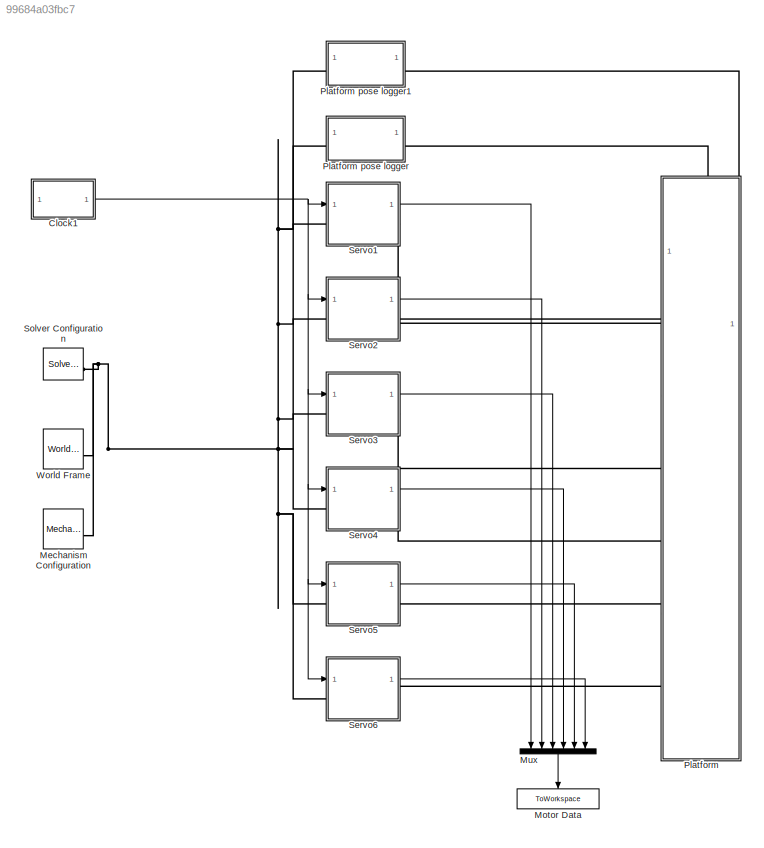
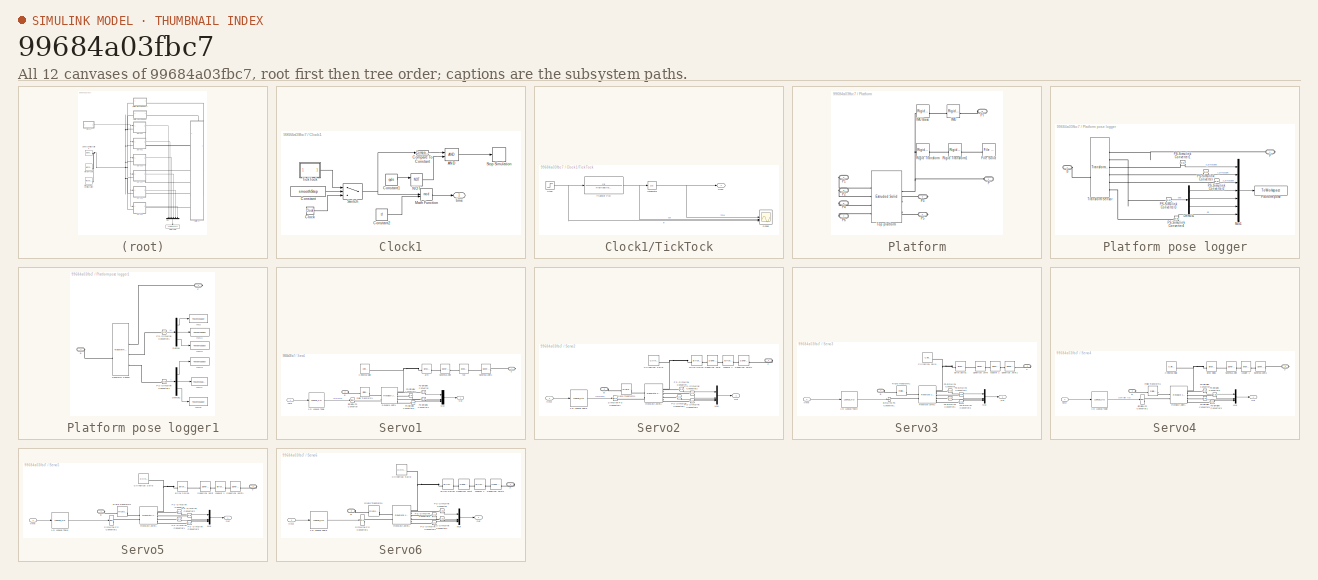
[diagram: thumbnail index - all 12 canvases of the model, root first then tree order]
MODEL slx_99684a03fbc7
KIND model
CONFIG AbsTol = 1e-3
CONFIG EnableMultiTasking = on
CONFIG FixedStep = 1e-4
CONFIG MaxStep = auto
CONFIG MinStep = auto
CONFIG RelTol = 1e-3
CONFIG SampleTimeConstraint = Unconstrained
CONFIG SolverName = FixedStepAuto
CONFIG StartTime = 0.0
CONFIG StopTime = Inf
BLOCK [SubSystem] Clock1
BLOCK [Logic] Clock1/AND
  AllPortsSameDT = off
  IconShape = distinctive
  OutDataTypeStr = boolean
BLOCK [Clock] Clock1/Clock
BLOCK [Reference] Clock1/Compare To Constant  REF=simulink/Logic and Bit
Operations/Compare
To Constant
  SourceBlock = simulink/Logic and Bit\nOperations/Compare\nTo Constant
  SourceType = Compare To Constant
BLOCK [Constant] Clock1/Constant
  Value = smoothStep
BLOCK [Constant] Clock1/Constant1
  Value = cycle
BLOCK [Constant] Clock1/Constant2
  Value = tf
BLOCK [Math] Clock1/Math Function
  Operator = mod
BLOCK [Logic] Clock1/NOT
  AllPortsSameDT = off
  IconShape = distinctive
  Operator = NOT
  OutDataTypeStr = boolean
BLOCK [Stop] Clock1/Stop Simulation
BLOCK [Switch] Clock1/Switch
  Criteria = u2 > Threshold
  InputSameDT = off
  SaturateOnIntegerOverflow = off
BLOCK [SubSystem] Clock1/TickTock
BLOCK [Integrator] Clock1/TickTock/Integrator
BLOCK [Scope] Clock1/TickTock/Scope
  ActiveDisplayYMaximum = 1.00319
  ActiveDisplayYMinimum = 0.99077
  Floating = off
  GraphicalSettings = {"GraphicalSettings":{"LegacySettings":true,"Style":{"AxesScalingProperties":{"ScaleAxesLimitsAtStop":false},"Style":{"AxesColor":"[0 0 0]","ChannelNames":[""],"ColorOrder":"[1 0.909803921568627 0.392156862745098;0.149019607843137 0.549019607843137 0.866666666666667;0.96078431372549 0.466666666666667 0.16078431372549;0.286274509803922 0.858823529411765 0.250980392156863;0.752941176470588 0.3607843...<+519ch>
  MultipleDisplayCache = [{"MaxYLimMag":1.00319,"MaxYLimReal":1.00319,"MinYLimMag":0.99077,"MinYLimReal":0.99077,"PlotAsMagnitudePhase":false,"ShowGrid":true,"ShowLegend":true,"Title":"%<SignalLabel>","YLabel":""}]
  NumInputPorts = 3
  ShowLegend = on
  WasSavedAsWebScope = on
  WindowPosition = [1 49 1920 960]
BLOCK [Step] Clock1/TickTock/Step
  SampleTime = 0
  Time = 0
BLOCK [TransferFcn] Clock1/TickTock/Transfer Fcn
  Denominator = fliplr(poly(ones(1, order) * -1) .* tauK.^(0:order))
BLOCK [Outport] Clock1/TickTock/clock
BLOCK [Outport] Clock1/time
BLOCK [Reference] Mechanism Configuration  REF=sm_lib/Utilities/Mechanism
Configuration
  SourceBlock = sm_lib/Utilities/Mechanism\nConfiguration
  SourceType = Mechanism\nConfiguration
BLOCK [ToWorkspace] Motor Data
  FixptAsFi = on
  MaxDataPoints = inf
  SampleTime = -1
  SaveFormat = Timeseries
  VariableName = simout
BLOCK [Mux] Mux
  DisplayOption = bar
  Inputs = 6
  NameLocation = left
BLOCK [SubSystem] Platform
  NameLocation = top
  PortSchema = {"entries":[{"content":{"sides":[{"content":{},"type":"ConnectorPlacement.EquallySpacedRectSide","uuid":"9676e411-c393-4a61-b60a-23ce37fcadae"},{"content":{"connectorIds":["RConn1","RConn2","RConn3","RConn4","RConn5","RConn6"],"side":"RIGHT"},"type":"ConnectorPlacement.EquallySpacedRectSide","uuid":"2c923754-983e-4ac2-bedb-445f0578a5c9"},{"content":{"connectorIds":["LConn1","LConn2"],"side":"TOP"}...<+282ch>
BLOCK [SubSystem] Platform pose logger
BLOCK [PMIOPort] Platform pose logger/B
  Port = 2
  Side = Left
BLOCK [Demux] Platform pose logger/Demux1
  Outputs = 3
BLOCK [PMIOPort] Platform pose logger/F
  NameLocation = top
  Side = Right
BLOCK [Mux] Platform pose logger/Mux1
  DisplayOption = bar
  Inputs = 7
BLOCK [Reference] Platform pose logger/PS-Simulink Converter  REF=nesl_utility/PS-Simulink
Converter
  SourceBlock = nesl_utility/PS-Simulink\nConverter
  SourceType = PS-Simulink\nConverter
BLOCK [Reference] Platform pose logger/PS-Simulink Converter1  REF=nesl_utility/PS-Simulink
Converter
  SourceBlock = nesl_utility/PS-Simulink\nConverter
  SourceType = PS-Simulink\nConverter
BLOCK [Reference] Platform pose logger/PS-Simulink Converter2  REF=nesl_utility/PS-Simulink
Converter
  SourceBlock = nesl_utility/PS-Simulink\nConverter
  SourceType = PS-Simulink\nConverter
BLOCK [Reference] Platform pose logger/PS-Simulink Converter3  REF=nesl_utility/PS-Simulink
Converter
  SourceBlock = nesl_utility/PS-Simulink\nConverter
  SourceType = PS-Simulink\nConverter
BLOCK [Reference] Platform pose logger/PS-Simulink Converter4  REF=nesl_utility/PS-Simulink
Converter
  SourceBlock = nesl_utility/PS-Simulink\nConverter
  SourceType = PS-Simulink\nConverter
BLOCK [ToWorkspace] Platform pose logger/Platform pose
  FixptAsFi = on
  MaxDataPoints = inf
  SampleTime = -1
  SaveFormat = Timeseries
  VariableName = pose_simscape
BLOCK [Reference] Platform pose logger/Transform Sensor  REF=sm_lib/Frames and
Transforms/Transform
Sensor
  SourceBlock = sm_lib/Frames and\nTransforms/Transform\nSensor
  SourceType = Transform\nSensor
BLOCK [SubSystem] Platform pose logger1
BLOCK [PMIOPort] Platform pose logger1/B
  Port = 2
  Side = Left
BLOCK [Demux] Platform pose logger1/Demux
  Outputs = 3
BLOCK [Demux] Platform pose logger1/Demux1
  Outputs = 3
BLOCK [PMIOPort] Platform pose logger1/F
  NameLocation = top
  Side = Right
BLOCK [ToWorkspace] Platform pose logger1/IMU
  FixptAsFi = on
  MaxDataPoints = inf
  SampleTime = -1
  SaveFormat = Timeseries
  VariableName = imu_sim_wx
BLOCK [ToWorkspace] Platform pose logger1/IMU1
  FixptAsFi = on
  MaxDataPoints = inf
  SampleTime = -1
  SaveFormat = Timeseries
  VariableName = imu_sim_wy
BLOCK [ToWorkspace] Platform pose logger1/IMU2
  FixptAsFi = on
  MaxDataPoints = inf
  SampleTime = -1
  SaveFormat = Timeseries
  VariableName = imu_sim_wz
BLOCK [ToWorkspace] Platform pose logger1/IMU3
  FixptAsFi = on
  MaxDataPoints = inf
  SampleTime = -1
  SaveFormat = Timeseries
  VariableName = imu_sim_ax
BLOCK [ToWorkspace] Platform pose logger1/IMU4
  FixptAsFi = on
  MaxDataPoints = inf
  SampleTime = -1
  SaveFormat = Timeseries
  VariableName = imu_sim_ay
BLOCK [ToWorkspace] Platform pose logger1/IMU5
  FixptAsFi = on
  MaxDataPoints = inf
  SampleTime = -1
  SaveFormat = Timeseries
  VariableName = imu_sim_az
BLOCK [Reference] Platform pose logger1/PS-Simulink Converter1  REF=nesl_utility/PS-Simulink
Converter
  SourceBlock = nesl_utility/PS-Simulink\nConverter
  SourceType = PS-Simulink\nConverter
BLOCK [Reference] Platform pose logger1/PS-Simulink Converter4  REF=nesl_utility/PS-Simulink
Converter
  SourceBlock = nesl_utility/PS-Simulink\nConverter
  SourceType = PS-Simulink\nConverter
BLOCK [Reference] Platform pose logger1/Transform Sensor  REF=sm_lib/Frames and
Transforms/Transform
Sensor
  SourceBlock = sm_lib/Frames and\nTransforms/Transform\nSensor
  SourceType = Transform\nSensor
BLOCK [Reference] Platform/File Solid  REF=sm_lib/Body Elements/File Solid
  SourceBlock = sm_lib/Body Elements/File Solid
  SourceType = File Solid
BLOCK [Reference] Platform/IMU  REF=sm_lib/Frames and
Transforms/Rigid
Transform
  SourceBlock = sm_lib/Frames and\nTransforms/Rigid\nTransform
  SourceType = Rigid\nTransform
BLOCK [Reference] Platform/IMU Base  REF=sm_lib/Frames and
Transforms/Rigid
Transform
  SourceBlock = sm_lib/Frames and\nTransforms/Rigid\nTransform
  SourceType = Rigid\nTransform
BLOCK [PMIOPort] Platform/P
  NameLocation = top
  Side = Left
BLOCK [PMIOPort] Platform/P1
  Port = 2
  Side = Right
BLOCK [PMIOPort] Platform/P2
  Port = 3
  Side = Right
BLOCK [PMIOPort] Platform/P3
  NameLocation = top
  Port = 4
  Side = Right
BLOCK [PMIOPort] Platform/P4
  Port = 5
  Side = Right
BLOCK [PMIOPort] Platform/P5
  NameLocation = top
  Port = 6
  Side = Right
BLOCK [PMIOPort] Platform/P6
  Port = 7
  Side = Right
BLOCK [PMIOPort] Platform/P7
  NameLocation = top
  Port = 8
  Side = Left
BLOCK [Reference] Platform/Rigid Transform  REF=sm_lib/Frames and
Transforms/Rigid
Transform
  SourceBlock = sm_lib/Frames and\nTransforms/Rigid\nTransform
  SourceType = Rigid\nTransform
BLOCK [Reference] Platform/Rigid Transform1  REF=sm_lib/Frames and
Transforms/Rigid
Transform
  SourceBlock = sm_lib/Frames and\nTransforms/Rigid\nTransform
  SourceType = Rigid\nTransform
BLOCK [Reference] Platform/Top platform  REF=sm_lib/Body Elements/Extruded Solid
  SourceBlock = sm_lib/Body Elements/Extruded Solid
  SourceType = Extruded Solid
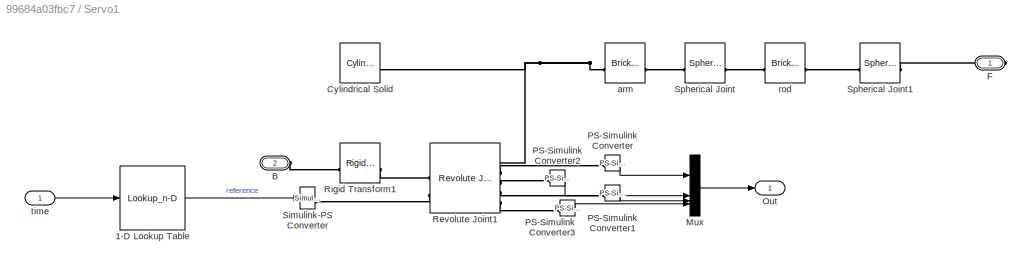
BLOCK [SubSystem] Servo1
BLOCK [Lookup_n-D] Servo1/1-D Lookup Table
  BreakpointsForDimension1 = time
  InputPortMap = u0
  InternalRulePriority = Speed
  InterpMethod = Cubic spline
  NumberOfTableDimensions = 1
  RndMeth = Simplest
  Table = jointAngles(:,2)
BLOCK [PMIOPort] Servo1/B
  Port = 2
  Side = Left
BLOCK [Reference] Servo1/Cylindrical Solid  REF=sm_lib/Body Elements/Cylindrical Solid
  SourceBlock = sm_lib/Body Elements/Cylindrical Solid
  SourceType = Cylindrical Solid
BLOCK [PMIOPort] Servo1/F
  Side = Right
BLOCK [Mux] Servo1/Mux
  DisplayOption = bar
BLOCK [Outport] Servo1/Out
BLOCK [Reference] Servo1/PS-Simulink Converter  REF=nesl_utility/PS-Simulink
Converter
  SourceBlock = nesl_utility/PS-Simulink\nConverter
  SourceType = PS-Simulink\nConverter
BLOCK [Reference] Servo1/PS-Simulink Converter1  REF=nesl_utility/PS-Simulink
Converter
  SourceBlock = nesl_utility/PS-Simulink\nConverter
  SourceType = PS-Simulink\nConverter
BLOCK [Reference] Servo1/PS-Simulink Converter2  REF=nesl_utility/PS-Simulink
Converter
  SourceBlock = nesl_utility/PS-Simulink\nConverter
  SourceType = PS-Simulink\nConverter
BLOCK [Reference] Servo1/PS-Simulink Converter3  REF=nesl_utility/PS-Simulink
Converter
  SourceBlock = nesl_utility/PS-Simulink\nConverter
  SourceType = PS-Simulink\nConverter
BLOCK [Reference] Servo1/Revolute Joint1  REF=sm_lib/Joints/Revolute Joint
  SourceBlock = sm_lib/Joints/Revolute Joint
  SourceType = Revolute Joint
BLOCK [Reference] Servo1/Rigid Transform1  REF=sm_lib/Frames and
Transforms/Rigid
Transform
  NameLocation = top
  SourceBlock = sm_lib/Frames and\nTransforms/Rigid\nTransform
  SourceType = Rigid\nTransform
BLOCK [Reference] Servo1/Simulink-PS Converter  REF=nesl_utility/Simulink-PS
Converter
  SourceBlock = nesl_utility/Simulink-PS\nConverter
  SourceType = Simulink-PS\nConverter
BLOCK [Reference] Servo1/Spherical Joint  REF=sm_lib/Joints/Spherical
Joint
  SourceBlock = sm_lib/Joints/Spherical\nJoint
  SourceType = Spherical\nJoint
BLOCK [Reference] Servo1/Spherical Joint1  REF=sm_lib/Joints/Spherical
Joint
  SourceBlock = sm_lib/Joints/Spherical\nJoint
  SourceType = Spherical\nJoint
BLOCK [Reference] Servo1/arm  REF=sm_lib/Body Elements/Brick Solid
  SourceBlock = sm_lib/Body Elements/Brick Solid
  SourceType = Brick Solid
BLOCK [Reference] Servo1/rod  REF=sm_lib/Body Elements/Brick Solid
  SourceBlock = sm_lib/Body Elements/Brick Solid
  SourceType = Brick Solid
BLOCK [Inport] Servo1/time
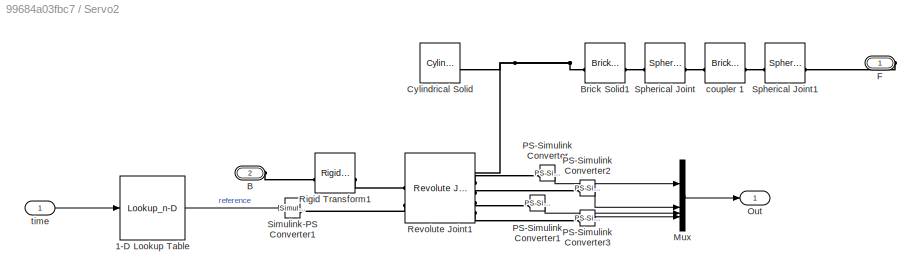
BLOCK [SubSystem] Servo2
BLOCK [Lookup_n-D] Servo2/1-D Lookup Table
  BreakpointsForDimension1 = time
  InputPortMap = u0
  InternalRulePriority = Speed
  InterpMethod = Cubic spline
  NumberOfTableDimensions = 1
  RndMeth = Simplest
  Table = jointAngles(:,3)
BLOCK [PMIOPort] Servo2/B
  Port = 2
  Side = Left
BLOCK [Reference] Servo2/Brick Solid1  REF=sm_lib/Body Elements/Brick Solid
  SourceBlock = sm_lib/Body Elements/Brick Solid
  SourceType = Brick Solid
BLOCK [Reference] Servo2/Cylindrical Solid  REF=sm_lib/Body Elements/Cylindrical Solid
  SourceBlock = sm_lib/Body Elements/Cylindrical Solid
  SourceType = Cylindrical Solid
BLOCK [PMIOPort] Servo2/F
  Side = Right
BLOCK [Mux] Servo2/Mux
  DisplayOption = bar
BLOCK [Outport] Servo2/Out
BLOCK [Reference] Servo2/PS-Simulink Converter  REF=nesl_utility/PS-Simulink
Converter
  SourceBlock = nesl_utility/PS-Simulink\nConverter
  SourceType = PS-Simulink\nConverter
BLOCK [Reference] Servo2/PS-Simulink Converter1  REF=nesl_utility/PS-Simulink
Converter
  SourceBlock = nesl_utility/PS-Simulink\nConverter
  SourceType = PS-Simulink\nConverter
BLOCK [Reference] Servo2/PS-Simulink Converter2  REF=nesl_utility/PS-Simulink
Converter
  SourceBlock = nesl_utility/PS-Simulink\nConverter
  SourceType = PS-Simulink\nConverter
BLOCK [Reference] Servo2/PS-Simulink Converter3  REF=nesl_utility/PS-Simulink
Converter
  SourceBlock = nesl_utility/PS-Simulink\nConverter
  SourceType = PS-Simulink\nConverter
BLOCK [Reference] Servo2/Revolute Joint1  REF=sm_lib/Joints/Revolute Joint
  SourceBlock = sm_lib/Joints/Revolute Joint
  SourceType = Revolute Joint
BLOCK [Reference] Servo2/Rigid Transform1  REF=sm_lib/Frames and
Transforms/Rigid
Transform
  NameLocation = top
  SourceBlock = sm_lib/Frames and\nTransforms/Rigid\nTransform
  SourceType = Rigid\nTransform
BLOCK [Reference] Servo2/Simulink-PS Converter1  REF=nesl_utility/Simulink-PS
Converter
  SourceBlock = nesl_utility/Simulink-PS\nConverter
  SourceType = Simulink-PS\nConverter
BLOCK [Reference] Servo2/Spherical Joint  REF=sm_lib/Joints/Spherical
Joint
  SourceBlock = sm_lib/Joints/Spherical\nJoint
  SourceType = Spherical\nJoint
BLOCK [Reference] Servo2/Spherical Joint1  REF=sm_lib/Joints/Spherical
Joint
  SourceBlock = sm_lib/Joints/Spherical\nJoint
  SourceType = Spherical\nJoint
BLOCK [Reference] Servo2/coupler 1  REF=sm_lib/Body Elements/Brick Solid
  SourceBlock = sm_lib/Body Elements/Brick Solid
  SourceType = Brick Solid
BLOCK [Inport] Servo2/time
BLOCK [SubSystem] Servo3
BLOCK [Lookup_n-D] Servo3/1-D Lookup Table
  BreakpointsForDimension1 = time
  InputPortMap = u0
  InternalRulePriority = Speed
  InterpMethod = Cubic spline
  NumberOfTableDimensions = 1
  RndMeth = Simplest
  Table = jointAngles(:,4)
BLOCK [PMIOPort] Servo3/B
  Port = 2
  Side = Left
BLOCK [Reference] Servo3/Brick Solid1  REF=sm_lib/Body Elements/Brick Solid
  SourceBlock = sm_lib/Body Elements/Brick Solid
  SourceType = Brick Solid
BLOCK [Reference] Servo3/Cylindrical Solid  REF=sm_lib/Body Elements/Cylindrical Solid
  SourceBlock = sm_lib/Body Elements/Cylindrical Solid
  SourceType = Cylindrical Solid
BLOCK [PMIOPort] Servo3/F
  Side = Right
BLOCK [Mux] Servo3/Mux
  DisplayOption = bar
BLOCK [Outport] Servo3/Out
BLOCK [Reference] Servo3/PS-Simulink Converter  REF=nesl_utility/PS-Simulink
Converter
  SourceBlock = nesl_utility/PS-Simulink\nConverter
  SourceType = PS-Simulink\nConverter
BLOCK [Reference] Servo3/PS-Simulink Converter1  REF=nesl_utility/PS-Simulink
Converter
  SourceBlock = nesl_utility/PS-Simulink\nConverter
  SourceType = PS-Simulink\nConverter
BLOCK [Reference] Servo3/PS-Simulink Converter2  REF=nesl_utility/PS-Simulink
Converter
  SourceBlock = nesl_utility/PS-Simulink\nConverter
  SourceType = PS-Simulink\nConverter
BLOCK [Reference] Servo3/PS-Simulink Converter3  REF=nesl_utility/PS-Simulink
Converter
  SourceBlock = nesl_utility/PS-Simulink\nConverter
  SourceType = PS-Simulink\nConverter
BLOCK [Reference] Servo3/Revolute Joint1  REF=sm_lib/Joints/Revolute Joint
  SourceBlock = sm_lib/Joints/Revolute Joint
  SourceType = Revolute Joint
BLOCK [Reference] Servo3/Rigid Transform1  REF=sm_lib/Frames and
Transforms/Rigid
Transform
  NameLocation = top
  SourceBlock = sm_lib/Frames and\nTransforms/Rigid\nTransform
  SourceType = Rigid\nTransform
BLOCK [Reference] Servo3/Simulink-PS Converter1  REF=nesl_utility/Simulink-PS
Converter
  SourceBlock = nesl_utility/Simulink-PS\nConverter
  SourceType = Simulink-PS\nConverter
BLOCK [Reference] Servo3/Spherical Joint  REF=sm_lib/Joints/Spherical
Joint
  SourceBlock = sm_lib/Joints/Spherical\nJoint
  SourceType = Spherical\nJoint
BLOCK [Reference] Servo3/Spherical Joint1  REF=sm_lib/Joints/Spherical
Joint
  SourceBlock = sm_lib/Joints/Spherical\nJoint
  SourceType = Spherical\nJoint
BLOCK [Reference] Servo3/coupler 1  REF=sm_lib/Body Elements/Brick Solid
  SourceBlock = sm_lib/Body Elements/Brick Solid
  SourceType = Brick Solid
BLOCK [Inport] Servo3/time
BLOCK [SubSystem] Servo4
BLOCK [Lookup_n-D] Servo4/1-D Lookup Table
  BreakpointsForDimension1 = time
  InputPortMap = u0
  InternalRulePriority = Speed
  InterpMethod = Cubic spline
  NumberOfTableDimensions = 1
  RndMeth = Simplest
  Table = jointAngles(:,5)
BLOCK [PMIOPort] Servo4/B
  Port = 2
  Side = Left
BLOCK [Reference] Servo4/Brick Solid1  REF=sm_lib/Body Elements/Brick Solid
  SourceBlock = sm_lib/Body Elements/Brick Solid
  SourceType = Brick Solid
BLOCK [Reference] Servo4/Cylindrical Solid  REF=sm_lib/Body Elements/Cylindrical Solid
  SourceBlock = sm_lib/Body Elements/Cylindrical Solid
  SourceType = Cylindrical Solid
BLOCK [PMIOPort] Servo4/F
  Side = Right
BLOCK [Mux] Servo4/Mux
  DisplayOption = bar
BLOCK [Outport] Servo4/Out
BLOCK [Reference] Servo4/PS-Simulink Converter  REF=nesl_utility/PS-Simulink
Converter
  SourceBlock = nesl_utility/PS-Simulink\nConverter
  SourceType = PS-Simulink\nConverter
BLOCK [Reference] Servo4/PS-Simulink Converter1  REF=nesl_utility/PS-Simulink
Converter
  SourceBlock = nesl_utility/PS-Simulink\nConverter
  SourceType = PS-Simulink\nConverter
BLOCK [Reference] Servo4/PS-Simulink Converter2  REF=nesl_utility/PS-Simulink
Converter
  SourceBlock = nesl_utility/PS-Simulink\nConverter
  SourceType = PS-Simulink\nConverter
BLOCK [Reference] Servo4/PS-Simulink Converter3  REF=nesl_utility/PS-Simulink
Converter
  SourceBlock = nesl_utility/PS-Simulink\nConverter
  SourceType = PS-Simulink\nConverter
BLOCK [Reference] Servo4/Revolute Joint1  REF=sm_lib/Joints/Revolute Joint
  SourceBlock = sm_lib/Joints/Revolute Joint
  SourceType = Revolute Joint
BLOCK [Reference] Servo4/Rigid Transform1  REF=sm_lib/Frames and
Transforms/Rigid
Transform
  NameLocation = top
  SourceBlock = sm_lib/Frames and\nTransforms/Rigid\nTransform
  SourceType = Rigid\nTransform
BLOCK [Reference] Servo4/Simulink-PS Converter1  REF=nesl_utility/Simulink-PS
Converter
  SourceBlock = nesl_utility/Simulink-PS\nConverter
  SourceType = Simulink-PS\nConverter
BLOCK [Reference] Servo4/Spherical Joint  REF=sm_lib/Joints/Spherical
Joint
  SourceBlock = sm_lib/Joints/Spherical\nJoint
  SourceType = Spherical\nJoint
BLOCK [Reference] Servo4/Spherical Joint1  REF=sm_lib/Joints/Spherical
Joint
  SourceBlock = sm_lib/Joints/Spherical\nJoint
  SourceType = Spherical\nJoint
BLOCK [Reference] Servo4/coupler 1  REF=sm_lib/Body Elements/Brick Solid
  SourceBlock = sm_lib/Body Elements/Brick Solid
  SourceType = Brick Solid
BLOCK [Inport] Servo4/time
BLOCK [SubSystem] Servo5
BLOCK [Lookup_n-D] Servo5/1-D Lookup Table
  BreakpointsForDimension1 = time
  InputPortMap = u0
  InternalRulePriority = Speed
  InterpMethod = Cubic spline
  NumberOfTableDimensions = 1
  RndMeth = Simplest
  Table = jointAngles(:,6)
BLOCK [PMIOPort] Servo5/B
  Port = 2
  Side = Left
BLOCK [Reference] Servo5/Brick Solid1  REF=sm_lib/Body Elements/Brick Solid
  SourceBlock = sm_lib/Body Elements/Brick Solid
  SourceType = Brick Solid
BLOCK [Reference] Servo5/Cylindrical Solid  REF=sm_lib/Body Elements/Cylindrical Solid
  SourceBlock = sm_lib/Body Elements/Cylindrical Solid
  SourceType = Cylindrical Solid
BLOCK [PMIOPort] Servo5/F
  Side = Right
BLOCK [Mux] Servo5/Mux
  DisplayOption = bar
BLOCK [Outport] Servo5/Out
BLOCK [Reference] Servo5/PS-Simulink Converter  REF=nesl_utility/PS-Simulink
Converter
  SourceBlock = nesl_utility/PS-Simulink\nConverter
  SourceType = PS-Simulink\nConverter
BLOCK [Reference] Servo5/PS-Simulink Converter1  REF=nesl_utility/PS-Simulink
Converter
  SourceBlock = nesl_utility/PS-Simulink\nConverter
  SourceType = PS-Simulink\nConverter
BLOCK [Reference] Servo5/PS-Simulink Converter2  REF=nesl_utility/PS-Simulink
Converter
  SourceBlock = nesl_utility/PS-Simulink\nConverter
  SourceType = PS-Simulink\nConverter
BLOCK [Reference] Servo5/PS-Simulink Converter3  REF=nesl_utility/PS-Simulink
Converter
  SourceBlock = nesl_utility/PS-Simulink\nConverter
  SourceType = PS-Simulink\nConverter
BLOCK [Reference] Servo5/Revolute Joint1  REF=sm_lib/Joints/Revolute Joint
  SourceBlock = sm_lib/Joints/Revolute Joint
  SourceType = Revolute Joint
BLOCK [Reference] Servo5/Rigid Transform1  REF=sm_lib/Frames and
Transforms/Rigid
Transform
  NameLocation = top
  SourceBlock = sm_lib/Frames and\nTransforms/Rigid\nTransform
  SourceType = Rigid\nTransform
BLOCK [Reference] Servo5/Simulink-PS Converter1  REF=nesl_utility/Simulink-PS
Converter
  SourceBlock = nesl_utility/Simulink-PS\nConverter
  SourceType = Simulink-PS\nConverter
BLOCK [Reference] Servo5/Spherical Joint  REF=sm_lib/Joints/Spherical
Joint
  SourceBlock = sm_lib/Joints/Spherical\nJoint
  SourceType = Spherical\nJoint
BLOCK [Reference] Servo5/Spherical Joint1  REF=sm_lib/Joints/Spherical
Joint
  SourceBlock = sm_lib/Joints/Spherical\nJoint
  SourceType = Spherical\nJoint
BLOCK [Reference] Servo5/coupler 1  REF=sm_lib/Body Elements/Brick Solid
  SourceBlock = sm_lib/Body Elements/Brick Solid
  SourceType = Brick Solid
BLOCK [Inport] Servo5/time
BLOCK [SubSystem] Servo6
BLOCK [Lookup_n-D] Servo6/1-D Lookup Table
  BreakpointsForDimension1 = time
  InputPortMap = u0
  InternalRulePriority = Speed
  InterpMethod = Cubic spline
  NumberOfTableDimensions = 1
  RndMeth = Simplest
  Table = jointAngles(:,7)
BLOCK [PMIOPort] Servo6/B
  Port = 2
  Side = Left
BLOCK [Reference] Servo6/Brick Solid1  REF=sm_lib/Body Elements/Brick Solid
  SourceBlock = sm_lib/Body Elements/Brick Solid
  SourceType = Brick Solid
BLOCK [Reference] Servo6/Cylindrical Solid  REF=sm_lib/Body Elements/Cylindrical Solid
  SourceBlock = sm_lib/Body Elements/Cylindrical Solid
  SourceType = Cylindrical Solid
BLOCK [PMIOPort] Servo6/F
  Side = Right
BLOCK [Mux] Servo6/Mux
  DisplayOption = bar
BLOCK [Outport] Servo6/Out
BLOCK [Reference] Servo6/PS-Simulink Converter  REF=nesl_utility/PS-Simulink
Converter
  SourceBlock = nesl_utility/PS-Simulink\nConverter
  SourceType = PS-Simulink\nConverter
BLOCK [Reference] Servo6/PS-Simulink Converter1  REF=nesl_utility/PS-Simulink
Converter
  SourceBlock = nesl_utility/PS-Simulink\nConverter
  SourceType = PS-Simulink\nConverter
BLOCK [Reference] Servo6/PS-Simulink Converter2  REF=nesl_utility/PS-Simulink
Converter
  SourceBlock = nesl_utility/PS-Simulink\nConverter
  SourceType = PS-Simulink\nConverter
BLOCK [Reference] Servo6/PS-Simulink Converter3  REF=nesl_utility/PS-Simulink
Converter
  SourceBlock = nesl_utility/PS-Simulink\nConverter
  SourceType = PS-Simulink\nConverter
BLOCK [Reference] Servo6/Revolute Joint1  REF=sm_lib/Joints/Revolute Joint
  SourceBlock = sm_lib/Joints/Revolute Joint
  SourceType = Revolute Joint
BLOCK [Reference] Servo6/Rigid Transform1  REF=sm_lib/Frames and
Transforms/Rigid
Transform
  NameLocation = top
  SourceBlock = sm_lib/Frames and\nTransforms/Rigid\nTransform
  SourceType = Rigid\nTransform
BLOCK [Reference] Servo6/Simulink-PS Converter1  REF=nesl_utility/Simulink-PS
Converter
  SourceBlock = nesl_utility/Simulink-PS\nConverter
  SourceType = Simulink-PS\nConverter
BLOCK [Reference] Servo6/Spherical Joint  REF=sm_lib/Joints/Spherical
Joint
  SourceBlock = sm_lib/Joints/Spherical\nJoint
  SourceType = Spherical\nJoint
BLOCK [Reference] Servo6/Spherical Joint1  REF=sm_lib/Joints/Spherical
Joint
  SourceBlock = sm_lib/Joints/Spherical\nJoint
  SourceType = Spherical\nJoint
BLOCK [Reference] Servo6/coupler 1  REF=sm_lib/Body Elements/Brick Solid
  SourceBlock = sm_lib/Body Elements/Brick Solid
  SourceType = Brick Solid
BLOCK [Inport] Servo6/time
BLOCK [Reference] Solver Configuration  REF=nesl_utility/Solver
Configuration
  SourceBlock = nesl_utility/Solver\nConfiguration
  SourceType = Solver\nConfiguration
BLOCK [Reference] World Frame  REF=sm_lib/Frames and
Transforms/World Frame
  SourceBlock = sm_lib/Frames and\nTransforms/World Frame
  SourceType = World Frame
LINE Clock1/AND:1 -> Clock1/Stop Simulation:1
LINE Clock1/Clock:1 -> Clock1/Switch:3
LINE Clock1/Compare To Constant:1 -> Clock1/AND:1
LINE Clock1/Constant1:1 -> Clock1/NOT:1
LINE Clock1/Constant2:1 -> Clock1/Math Function:2
LINE Clock1/Constant:1 -> Clock1/Switch:2
LINE Clock1/Math Function:1 -> Clock1/time:1
LINE Clock1/NOT:1 -> Clock1/AND:2
NET Clock1/Switch:1 -> Clock1/Compare To Constant:1, Clock1/Math Function:1
NET Clock1/TickTock/Integrator:1 -> Clock1/TickTock/Scope:1, Clock1/TickTock/clock:1
NET Clock1/TickTock/Step:1 -> Clock1/TickTock/Scope:3, Clock1/TickTock/Transfer Fcn:1
NET Clock1/TickTock/Transfer Fcn:1 -> Clock1/TickTock/Integrator:1, Clock1/TickTock/Scope:2
LINE Clock1/TickTock:1 -> Clock1/Switch:1
NET Clock1:1 -> Servo1:1, Servo2:1, Servo3:1, Servo4:1, Servo5:1, Servo6:1
LINE Mux:1 -> Motor Data:1
LINE Platform pose logger/Demux1:1 -> Platform pose logger/Mux1:4
LINE Platform pose logger/Demux1:2 -> Platform pose logger/Mux1:5
LINE Platform pose logger/Demux1:3 -> Platform pose logger/Mux1:6
LINE Platform pose logger/Mux1:1 -> Platform pose logger/Platform pose:1
LINE Platform pose logger/PS-Simulink Converter1:1 -> Platform pose logger/Mux1:1
LINE Platform pose logger/PS-Simulink Converter2:1 -> Platform pose logger/Mux1:3
LINE Platform pose logger/PS-Simulink Converter3:1 -> Platform pose logger/Demux1:1
LINE Platform pose logger/PS-Simulink Converter4:1 -> Platform pose logger/Mux1:7
LINE Platform pose logger/PS-Simulink Converter:1 -> Platform pose logger/Mux1:2
LINE Platform pose logger1/Demux1:1 -> Platform pose logger1/IMU3:1
LINE Platform pose logger1/Demux1:2 -> Platform pose logger1/IMU4:1
LINE Platform pose logger1/Demux1:3 -> Platform pose logger1/IMU5:1
LINE Platform pose logger1/Demux:1 -> Platform pose logger1/IMU:1
LINE Platform pose logger1/Demux:2 -> Platform pose logger1/IMU1:1
LINE Platform pose logger1/Demux:3 -> Platform pose logger1/IMU2:1
LINE Platform pose logger1/PS-Simulink Converter1:1 -> Platform pose logger1/Demux:1
LINE Platform pose logger1/PS-Simulink Converter4:1 -> Platform pose logger1/Demux1:1
LINE Servo1/1-D Lookup Table:1 -> Servo1/Simulink-PS Converter:1
LINE Servo1/Mux:1 -> Servo1/Out:1
LINE Servo1/PS-Simulink Converter1:1 -> Servo1/Mux:3
LINE Servo1/PS-Simulink Converter2:1 -> Servo1/Mux:2
LINE Servo1/PS-Simulink Converter3:1 -> Servo1/Mux:4
LINE Servo1/PS-Simulink Converter:1 -> Servo1/Mux:1
LINE Servo1/time:1 -> Servo1/1-D Lookup Table:1
LINE Servo1:1 -> Mux:1
LINE Servo2/1-D Lookup Table:1 -> Servo2/Simulink-PS Converter1:1
LINE Servo2/Mux:1 -> Servo2/Out:1
LINE Servo2/PS-Simulink Converter1:1 -> Servo2/Mux:3
LINE Servo2/PS-Simulink Converter2:1 -> Servo2/Mux:2
LINE Servo2/PS-Simulink Converter3:1 -> Servo2/Mux:4
LINE Servo2/PS-Simulink Converter:1 -> Servo2/Mux:1
LINE Servo2/time:1 -> Servo2/1-D Lookup Table:1
LINE Servo2:1 -> Mux:2
LINE Servo3/1-D Lookup Table:1 -> Servo3/Simulink-PS Converter1:1
LINE Servo3/Mux:1 -> Servo3/Out:1
LINE Servo3/PS-Simulink Converter1:1 -> Servo3/Mux:3
LINE Servo3/PS-Simulink Converter2:1 -> Servo3/Mux:2
LINE Servo3/PS-Simulink Converter3:1 -> Servo3/Mux:4
LINE Servo3/PS-Simulink Converter:1 -> Servo3/Mux:1
LINE Servo3/time:1 -> Servo3/1-D Lookup Table:1
LINE Servo3:1 -> Mux:3
LINE Servo4/1-D Lookup Table:1 -> Servo4/Simulink-PS Converter1:1
LINE Servo4/Mux:1 -> Servo4/Out:1
LINE Servo4/PS-Simulink Converter1:1 -> Servo4/Mux:3
LINE Servo4/PS-Simulink Converter2:1 -> Servo4/Mux:2
LINE Servo4/PS-Simulink Converter3:1 -> Servo4/Mux:4
LINE Servo4/PS-Simulink Converter:1 -> Servo4/Mux:1
LINE Servo4/time:1 -> Servo4/1-D Lookup Table:1
LINE Servo4:1 -> Mux:4
LINE Servo5/1-D Lookup Table:1 -> Servo5/Simulink-PS Converter1:1
LINE Servo5/Mux:1 -> Servo5/Out:1
LINE Servo5/PS-Simulink Converter1:1 -> Servo5/Mux:3
LINE Servo5/PS-Simulink Converter2:1 -> Servo5/Mux:2
LINE Servo5/PS-Simulink Converter3:1 -> Servo5/Mux:4
LINE Servo5/PS-Simulink Converter:1 -> Servo5/Mux:1
LINE Servo5/time:1 -> Servo5/1-D Lookup Table:1
LINE Servo5:1 -> Mux:5
LINE Servo6/1-D Lookup Table:1 -> Servo6/Simulink-PS Converter1:1
LINE Servo6/Mux:1 -> Servo6/Out:1
LINE Servo6/PS-Simulink Converter1:1 -> Servo6/Mux:3
LINE Servo6/PS-Simulink Converter2:1 -> Servo6/Mux:2
LINE Servo6/PS-Simulink Converter3:1 -> Servo6/Mux:4
LINE Servo6/PS-Simulink Converter:1 -> Servo6/Mux:1
LINE Servo6/time:1 -> Servo6/1-D Lookup Table:1
LINE Servo6:1 -> Mux:6
PNET net1: Mechanism Configuration:RConn1 -- Platform pose logger1:LConn1 -- Platform pose logger:LConn1 -- Servo1:LConn1 -- Servo2:LConn1 -- Servo3:LConn1 -- Servo4:LConn1 -- Servo5:LConn1 -- Servo6:LConn1 -- Solver Configuration:RConn1 -- World Frame:RConn1
PLINE Platform pose logger/B:RConn1 -- Platform pose logger/Transform Sensor:LConn1
PLINE Platform pose logger/F:RConn1 -- Platform pose logger/Transform Sensor:RConn1
PLINE Platform pose logger/PS-Simulink Converter1:LConn1 -- Platform pose logger/Transform Sensor:RConn3
PLINE Platform pose logger/PS-Simulink Converter2:LConn1 -- Platform pose logger/Transform Sensor:RConn5
PLINE Platform pose logger/PS-Simulink Converter3:LConn1 -- Platform pose logger/Transform Sensor:RConn2
PLINE Platform pose logger/PS-Simulink Converter4:LConn1 -- Platform pose logger/Transform Sensor:RConn6
PLINE Platform pose logger/PS-Simulink Converter:LConn1 -- Platform pose logger/Transform Sensor:RConn4
PLINE Platform pose logger1/B:RConn1 -- Platform pose logger1/Transform Sensor:LConn1
PLINE Platform pose logger1/F:RConn1 -- Platform pose logger1/Transform Sensor:RConn1
PLINE Platform pose logger1/PS-Simulink Converter1:LConn1 -- Platform pose logger1/Transform Sensor:RConn2
PLINE Platform pose logger1/PS-Simulink Converter4:LConn1 -- Platform pose logger1/Transform Sensor:RConn3
PLINE Platform pose logger1:RConn1 -- Platform:LConn2
PLINE Platform pose logger:RConn1 -- Platform:LConn1
PLINE Platform/File Solid:LConn1 -- Platform/Rigid Transform1:RConn1
PNET net2: Platform/IMU Base:LConn1 -- Platform/P:RConn1 -- Platform/Rigid Transform:LConn1 -- Platform/Top platform:RConn1
PLINE Platform/IMU Base:RConn1 -- Platform/IMU:LConn1
PLINE Platform/IMU:RConn1 -- Platform/P7:RConn1
PLINE Platform/P1:RConn1 -- Platform/Top platform:LConn1
PLINE Platform/P2:RConn1 -- Platform/Top platform:LConn2
PLINE Platform/P3:RConn1 -- Platform/Top platform:RConn2
PLINE Platform/P4:RConn1 -- Platform/Top platform:LConn3
PLINE Platform/P5:RConn1 -- Platform/Top platform:RConn3
PLINE Platform/P6:RConn1 -- Platform/Top platform:LConn4
PLINE Platform/Rigid Transform1:LConn1 -- Platform/Rigid Transform:RConn1
PLINE Platform:RConn1 -- Servo1:RConn1
PLINE Platform:RConn2 -- Servo2:RConn1
PLINE Platform:RConn3 -- Servo3:RConn1
PLINE Platform:RConn4 -- Servo4:RConn1
PLINE Platform:RConn5 -- Servo5:RConn1
PLINE Platform:RConn6 -- Servo6:RConn1
PLINE Servo1/B:RConn1 -- Servo1/Rigid Transform1:LConn1
PNET net3: Servo1/Cylindrical Solid:RConn1 -- Servo1/Revolute Joint1:RConn1 -- Servo1/arm:LConn1
PLINE Servo1/F:RConn1 -- Servo1/Spherical Joint1:RConn1
PLINE Servo1/PS-Simulink Converter1:LConn1 -- Servo1/Revolute Joint1:RConn4
PLINE Servo1/PS-Simulink Converter2:LConn1 -- Servo1/Revolute Joint1:RConn3
PLINE Servo1/PS-Simulink Converter3:LConn1 -- Servo1/Revolute Joint1:RConn5
PLINE Servo1/PS-Simulink Converter:LConn1 -- Servo1/Revolute Joint1:RConn2
PLINE Servo1/Revolute Joint1:LConn1 -- Servo1/Rigid Transform1:RConn1
PLINE Servo1/Revolute Joint1:LConn2 -- Servo1/Simulink-PS Converter:RConn1
PLINE Servo1/Spherical Joint1:LConn1 -- Servo1/rod:RConn1
PLINE Servo1/Spherical Joint:LConn1 -- Servo1/arm:RConn1
PLINE Servo1/Spherical Joint:RConn1 -- Servo1/rod:LConn1
PLINE Servo2/B:RConn1 -- Servo2/Rigid Transform1:LConn1
PNET net4: Servo2/Brick Solid1:LConn1 -- Servo2/Cylindrical Solid:RConn1 -- Servo2/Revolute Joint1:RConn1
PLINE Servo2/Brick Solid1:RConn1 -- Servo2/Spherical Joint:LConn1
PLINE Servo2/F:RConn1 -- Servo2/Spherical Joint1:RConn1
PLINE Servo2/PS-Simulink Converter1:LConn1 -- Servo2/Revolute Joint1:RConn4
PLINE Servo2/PS-Simulink Converter2:LConn1 -- Servo2/Revolute Joint1:RConn3
PLINE Servo2/PS-Simulink Converter3:LConn1 -- Servo2/Revolute Joint1:RConn5
PLINE Servo2/PS-Simulink Converter:LConn1 -- Servo2/Revolute Joint1:RConn2
PLINE Servo2/Revolute Joint1:LConn1 -- Servo2/Rigid Transform1:RConn1
PLINE Servo2/Revolute Joint1:LConn2 -- Servo2/Simulink-PS Converter1:RConn1
PLINE Servo2/Spherical Joint1:LConn1 -- Servo2/coupler 1:RConn1
PLINE Servo2/Spherical Joint:RConn1 -- Servo2/coupler 1:LConn1
PLINE Servo3/B:RConn1 -- Servo3/Rigid Transform1:LConn1
PNET net5: Servo3/Brick Solid1:LConn1 -- Servo3/Cylindrical Solid:RConn1 -- Servo3/Revolute Joint1:RConn1
PLINE Servo3/Brick Solid1:RConn1 -- Servo3/Spherical Joint:LConn1
PLINE Servo3/F:RConn1 -- Servo3/Spherical Joint1:RConn1
PLINE Servo3/PS-Simulink Converter1:LConn1 -- Servo3/Revolute Joint1:RConn4
PLINE Servo3/PS-Simulink Converter2:LConn1 -- Servo3/Revolute Joint1:RConn3
PLINE Servo3/PS-Simulink Converter3:LConn1 -- Servo3/Revolute Joint1:RConn5
PLINE Servo3/PS-Simulink Converter:LConn1 -- Servo3/Revolute Joint1:RConn2
PLINE Servo3/Revolute Joint1:LConn1 -- Servo3/Rigid Transform1:RConn1
PLINE Servo3/Revolute Joint1:LConn2 -- Servo3/Simulink-PS Converter1:RConn1
PLINE Servo3/Spherical Joint1:LConn1 -- Servo3/coupler 1:RConn1
PLINE Servo3/Spherical Joint:RConn1 -- Servo3/coupler 1:LConn1
PLINE Servo4/B:RConn1 -- Servo4/Rigid Transform1:LConn1
PNET net6: Servo4/Brick Solid1:LConn1 -- Servo4/Cylindrical Solid:RConn1 -- Servo4/Revolute Joint1:RConn1
PLINE Servo4/Brick Solid1:RConn1 -- Servo4/Spherical Joint:LConn1
PLINE Servo4/F:RConn1 -- Servo4/Spherical Joint1:RConn1
PLINE Servo4/PS-Simulink Converter1:LConn1 -- Servo4/Revolute Joint1:RConn4
PLINE Servo4/PS-Simulink Converter2:LConn1 -- Servo4/Revolute Joint1:RConn3
PLINE Servo4/PS-Simulink Converter3:LConn1 -- Servo4/Revolute Joint1:RConn5
PLINE Servo4/PS-Simulink Converter:LConn1 -- Servo4/Revolute Joint1:RConn2
PLINE Servo4/Revolute Joint1:LConn1 -- Servo4/Rigid Transform1:RConn1
PLINE Servo4/Revolute Joint1:LConn2 -- Servo4/Simulink-PS Converter1:RConn1
PLINE Servo4/Spherical Joint1:LConn1 -- Servo4/coupler 1:RConn1
PLINE Servo4/Spherical Joint:RConn1 -- Servo4/coupler 1:LConn1
PLINE Servo5/B:RConn1 -- Servo5/Rigid Transform1:LConn1
PNET net7: Servo5/Brick Solid1:LConn1 -- Servo5/Cylindrical Solid:RConn1 -- Servo5/Revolute Joint1:RConn1
PLINE Servo5/Brick Solid1:RConn1 -- Servo5/Spherical Joint:LConn1
PLINE Servo5/F:RConn1 -- Servo5/Spherical Joint1:RConn1
PLINE Servo5/PS-Simulink Converter1:LConn1 -- Servo5/Revolute Joint1:RConn4
PLINE Servo5/PS-Simulink Converter2:LConn1 -- Servo5/Revolute Joint1:RConn3
PLINE Servo5/PS-Simulink Converter3:LConn1 -- Servo5/Revolute Joint1:RConn5
PLINE Servo5/PS-Simulink Converter:LConn1 -- Servo5/Revolute Joint1:RConn2
PLINE Servo5/Revolute Joint1:LConn1 -- Servo5/Rigid Transform1:RConn1
PLINE Servo5/Revolute Joint1:LConn2 -- Servo5/Simulink-PS Converter1:RConn1
PLINE Servo5/Spherical Joint1:LConn1 -- Servo5/coupler 1:RConn1
PLINE Servo5/Spherical Joint:RConn1 -- Servo5/coupler 1:LConn1
PLINE Servo6/B:RConn1 -- Servo6/Rigid Transform1:LConn1
PNET net8: Servo6/Brick Solid1:LConn1 -- Servo6/Cylindrical Solid:RConn1 -- Servo6/Revolute Joint1:RConn1
PLINE Servo6/Brick Solid1:RConn1 -- Servo6/Spherical Joint:LConn1
PLINE Servo6/F:RConn1 -- Servo6/Spherical Joint1:RConn1
PLINE Servo6/PS-Simulink Converter1:LConn1 -- Servo6/Revolute Joint1:RConn4
PLINE Servo6/PS-Simulink Converter2:LConn1 -- Servo6/Revolute Joint1:RConn3
PLINE Servo6/PS-Simulink Converter3:LConn1 -- Servo6/Revolute Joint1:RConn5
PLINE Servo6/PS-Simulink Converter:LConn1 -- Servo6/Revolute Joint1:RConn2
PLINE Servo6/Revolute Joint1:LConn1 -- Servo6/Rigid Transform1:RConn1
PLINE Servo6/Revolute Joint1:LConn2 -- Servo6/Simulink-PS Converter1:RConn1
PLINE Servo6/Spherical Joint1:LConn1 -- Servo6/coupler 1:RConn1
PLINE Servo6/Spherical Joint:RConn1 -- Servo6/coupler 1:LConn1
note: NET lines group one-source signal fan-out (src -> all destinations, sorted); 1:1 wires keep LINE; PNET lines group multi-terminal physical nets as a canonical sorted terminal list (undirected conserving connections); 2-terminal nets keep the pairwise PLINE form
